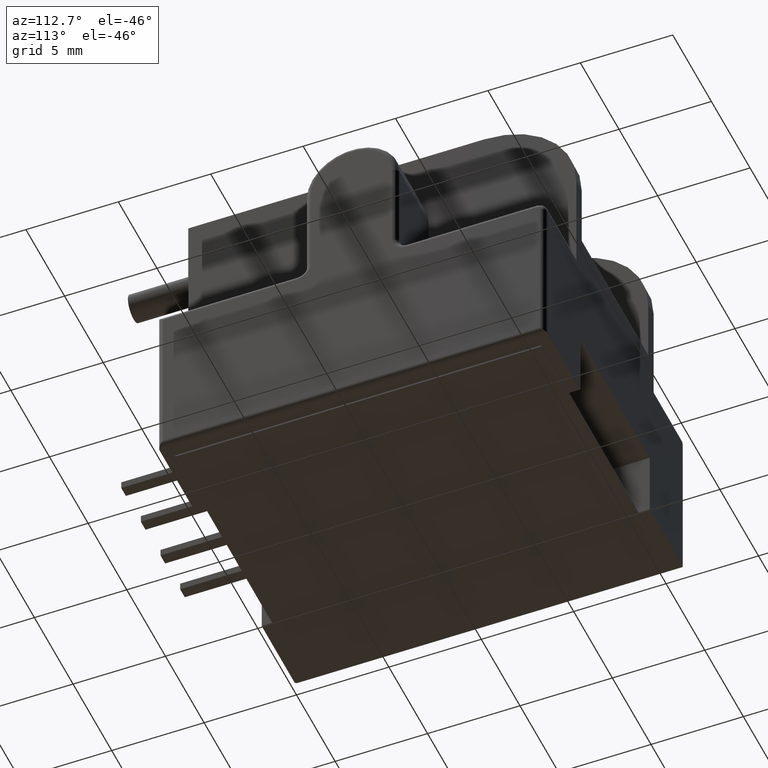
[diagram: clean part render]
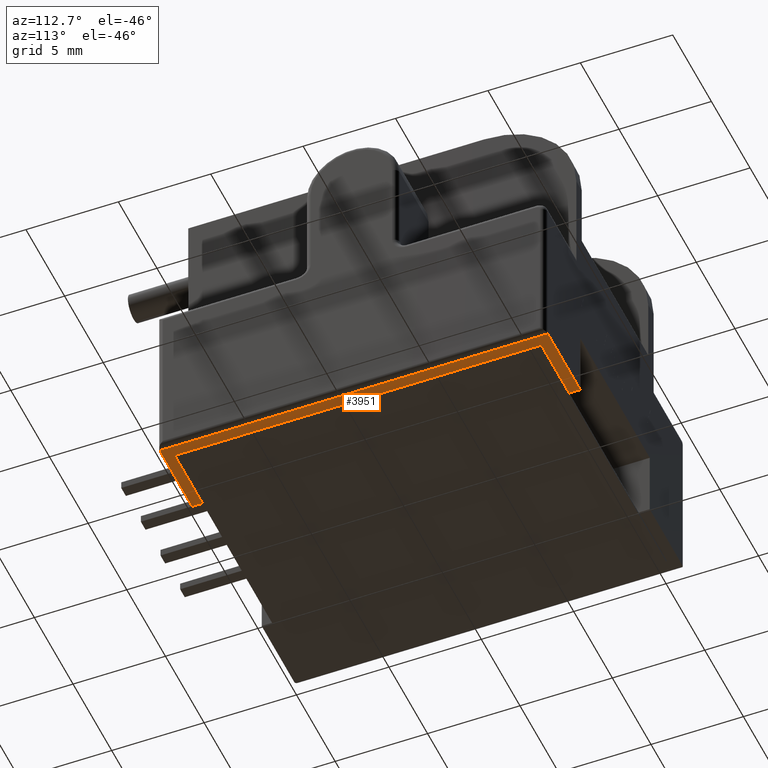
[diagram: same view with one face highlighted and labeled with its STEP entity id]
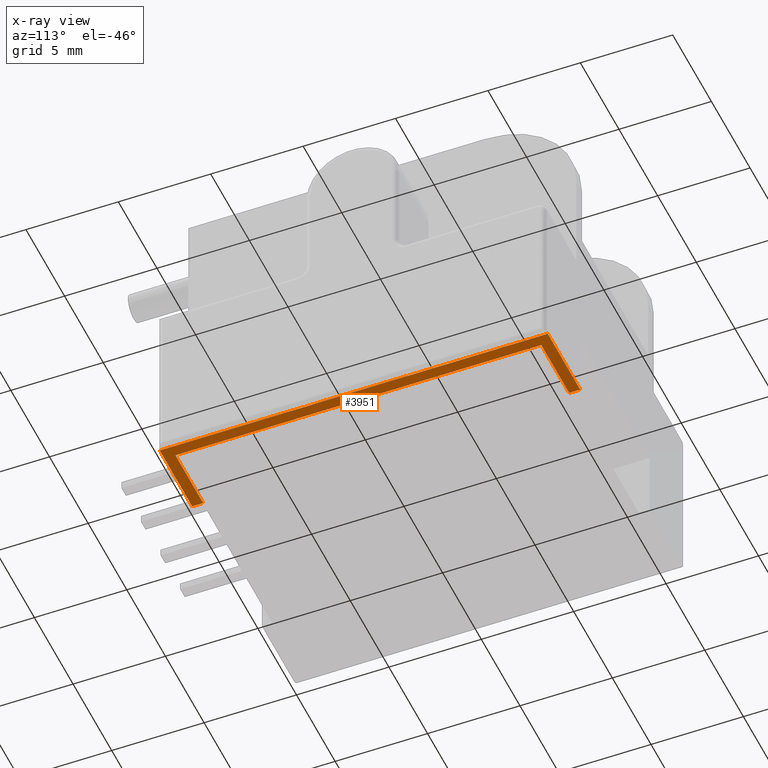
[diagram: x-ray of the same camera — body ghosted, the highlighted face saturated]
A machine part, auxiliary view. The second image highlights one B-rep face of the part: STEP entity #3951.
The next image is the same camera in x-ray: the body ghosted, the highlighted face saturated — about 0% of this face is hidden behind the body in this view.
In plain terms, the highlighted planar face has unit normal (0, 0, -1).
Its self-contained STEP definition (entity closure, byte-faithful):
#127 = VECTOR ( 'NONE', #463, 1000.000000000000000 ) ;
#223 = DIRECTION ( 'NONE',  ( -1.000000000000000000, 0.0000000000000000000, 0.0000000000000000000 ) ) ;
#284 = LINE ( 'NONE', #2945, #2959 ) ;
#319 = CARTESIAN_POINT ( 'NONE',  ( 17.69999999999999600, 20.99999999999999600, -19.50000000000000000 ) ) ;
#354 = DIRECTION ( 'NONE',  ( 0.0000000000000000000, -1.000000000000000000, 0.0000000000000000000 ) ) ;
#401 = VECTOR ( 'NONE', #592, 1000.000000000000000 ) ;
#463 = DIRECTION ( 'NONE',  ( -0.0000000000000000000, -1.000000000000000000, -0.0000000000000000000 ) ) ;
#592 = DIRECTION ( 'NONE',  ( -0.0000000000000000000, -1.000000000000000000, -0.0000000000000000000 ) ) ;
#764 = EDGE_CURVE ( 'NONE', #4752, #3211, #2462, .T. ) ;
#853 = AXIS2_PLACEMENT_3D ( 'NONE', #5181, #1906, #5199 ) ;
#1412 = ORIENTED_EDGE ( 'NONE', *, *, #4767, .F. ) ;
#1489 = DIRECTION ( 'NONE',  ( 0.0000000000000000000, -1.000000000000000000, 0.0000000000000000000 ) ) ;
#1694 = VERTEX_POINT ( 'NONE', #3271 ) ;
#1697 = VERTEX_POINT ( 'NONE', #3251 ) ;
#1742 = VERTEX_POINT ( 'NONE', #2807 ) ;
#1834 = VECTOR ( 'NONE', #4682, 1000.000000000000000 ) ;
#1906 = DIRECTION ( 'NONE',  ( 0.0000000000000000000, 0.0000000000000000000, -1.000000000000000000 ) ) ;
#2047 = FACE_OUTER_BOUND ( 'NONE', #5427, .T. ) ;
#2048 = LINE ( 'NONE', #2606, #4095 ) ;
#2174 = VERTEX_POINT ( 'NONE', #5155 ) ;
#2220 = LINE ( 'NONE', #2748, #127 ) ;
#2265 = ORIENTED_EDGE ( 'NONE', *, *, #764, .F. ) ;
#2268 = EDGE_CURVE ( 'NONE', #4183, #3211, #2220, .T. ) ;
#2332 = CARTESIAN_POINT ( 'NONE',  ( 17.09999999999999800, 20.39999999999999900, -19.50000000000000000 ) ) ;
#2462 = LINE ( 'NONE', #2865, #5635 ) ;
#2581 = CARTESIAN_POINT ( 'NONE',  ( 17.09999999999999800, 0.5999999999999999800, -19.50000000000000000 ) ) ;
#2606 = CARTESIAN_POINT ( 'NONE',  ( 13.49999999999999800, 0.0000000000000000000, -19.50000000000000000 ) ) ;
#2632 = DIRECTION ( 'NONE',  ( -1.000000000000000000, -0.0000000000000000000, -0.0000000000000000000 ) ) ;
#2664 = EDGE_CURVE ( 'NONE', #4183, #1742, #5778, .T. ) ;
#2698 = ORIENTED_EDGE ( 'NONE', *, *, #3439, .F. ) ;
#2748 = CARTESIAN_POINT ( 'NONE',  ( 17.69999999999999600, 0.0000000000000000000, -19.50000000000000000 ) ) ;
#2807 = CARTESIAN_POINT ( 'NONE',  ( 13.49999999999999800, 20.99999999999999600, -19.50000000000000400 ) ) ;
#2865 = CARTESIAN_POINT ( 'NONE',  ( 0.0000000000000000000, 0.0000000000000000000, -19.50000000000000000 ) ) ;
#2883 = DIRECTION ( 'NONE',  ( 1.000000000000000000, 0.0000000000000000000, 0.0000000000000000000 ) ) ;
#2945 = CARTESIAN_POINT ( 'NONE',  ( 13.49999999999999800, 0.0000000000000000000, -19.50000000000000000 ) ) ;
#2959 = VECTOR ( 'NONE', #1489, 1000.000000000000000 ) ;
#3007 = LINE ( 'NONE', #3367, #401 ) ;
#3193 = EDGE_CURVE ( 'NONE', #1697, #2174, #5235, .T. ) ;
#3211 = VERTEX_POINT ( 'NONE', #4640 ) ;
#3217 = PLANE ( 'NONE',  #853 ) ;
#3236 = VECTOR ( 'NONE', #2632, 1000.000000000000000 ) ;
#3251 = CARTESIAN_POINT ( 'NONE',  ( 17.09999999999999800, 0.5999999999999999800, -19.50000000000000000 ) ) ;
#3271 = CARTESIAN_POINT ( 'NONE',  ( 13.49999999999999800, 20.39999999999999900, -19.50000000000000000 ) ) ;
#3367 = CARTESIAN_POINT ( 'NONE',  ( 17.09999999999999800, 0.5999999999999999800, -19.50000000000000000 ) ) ;
#3439 = EDGE_CURVE ( 'NONE', #1694, #4162, #5520, .T. ) ;
#3542 = EDGE_CURVE ( 'NONE', #4162, #1697, #3007, .T. ) ;
#3760 = ORIENTED_EDGE ( 'NONE', *, *, #2268, .T. ) ;
#3951 = ADVANCED_FACE ( 'NONE', ( #2047 ), #3217, .T. ) ;
#4095 = VECTOR ( 'NONE', #354, 1000.000000000000000 ) ;
#4162 = VERTEX_POINT ( 'NONE', #4867 ) ;
#4183 = VERTEX_POINT ( 'NONE', #319 ) ;
#4186 = VECTOR ( 'NONE', #223, 1000.000000000000000 ) ;
#4278 = CARTESIAN_POINT ( 'NONE',  ( 13.49999999999999800, -1.734723475976807100E-015, -19.50000000000000400 ) ) ;
#4640 = CARTESIAN_POINT ( 'NONE',  ( 17.69999999999999600, 0.0000000000000000000, -19.50000000000000000 ) ) ;
#4682 = DIRECTION ( 'NONE',  ( 1.000000000000000000, -0.0000000000000000000, -0.0000000000000000000 ) ) ;
#4731 = ORIENTED_EDGE ( 'NONE', *, *, #3542, .F. ) ;
#4734 = ORIENTED_EDGE ( 'NONE', *, *, #3193, .F. ) ;
#4752 = VERTEX_POINT ( 'NONE', #4278 ) ;
#4767 = EDGE_CURVE ( 'NONE', #1742, #1694, #284, .T. ) ;
#4867 = CARTESIAN_POINT ( 'NONE',  ( 17.09999999999999800, 20.39999999999999900, -19.50000000000000000 ) ) ;
#5080 = EDGE_CURVE ( 'NONE', #2174, #4752, #2048, .T. ) ;
#5155 = CARTESIAN_POINT ( 'NONE',  ( 13.49999999999999800, 0.5999999999999998700, -19.50000000000000000 ) ) ;
#5181 = CARTESIAN_POINT ( 'NONE',  ( 0.0000000000000000000, 0.0000000000000000000, -19.50000000000000000 ) ) ;
#5199 = DIRECTION ( 'NONE',  ( -1.000000000000000000, 0.0000000000000000000, -0.0000000000000000000 ) ) ;
#5235 = LINE ( 'NONE', #2581, #4186 ) ;
#5305 = ORIENTED_EDGE ( 'NONE', *, *, #2664, .F. ) ;
#5407 = CARTESIAN_POINT ( 'NONE',  ( 0.0000000000000000000, 20.99999999999999600, -19.50000000000000000 ) ) ;
#5427 = EDGE_LOOP ( 'NONE', ( #5953, #4734, #4731, #2698, #1412, #5305, #3760, #2265 ) ) ;
#5520 = LINE ( 'NONE', #2332, #1834 ) ;
#5635 = VECTOR ( 'NONE', #2883, 1000.000000000000000 ) ;
#5778 = LINE ( 'NONE', #5407, #3236 ) ;
#5953 = ORIENTED_EDGE ( 'NONE', *, *, #5080, .F. ) ;